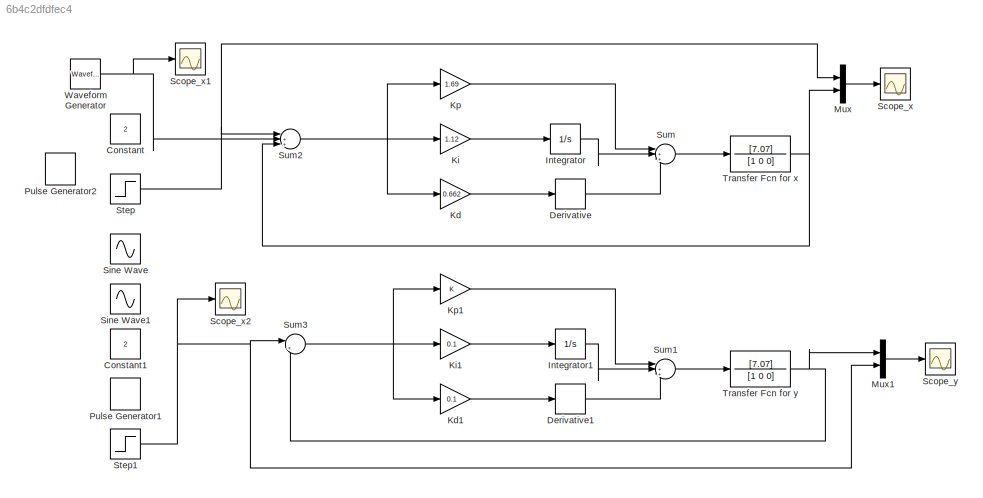
MODEL slx_6b4c2dfdfec4
KIND model
CONFIG AbsTol = auto
CONFIG EnableMultiTasking = off
CONFIG FixedStep = auto
CONFIG MaxStep = auto
CONFIG MinStep = auto
CONFIG RelTol = 1e-3
CONFIG SampleTimeConstraint = Unconstrained
CONFIG SolverName = VariableStepAuto
CONFIG StartTime = 0.0
CONFIG StopTime = 10.0
BLOCK [Constant] Constant
  Value = 2
BLOCK [Constant] Constant1
  Value = 2
BLOCK [Derivative] Derivative
BLOCK [Derivative] Derivative1
BLOCK [Integrator] Integrator
BLOCK [Integrator] Integrator1
BLOCK [Gain] Kd
  Gain = 0.662
BLOCK [Gain] Kd1
  Gain = 0.1
BLOCK [Gain] Ki
  Gain = 1.12
BLOCK [Gain] Ki1
  Gain = 0.1
BLOCK [Gain] Kp
  Gain = 1.69
BLOCK [Gain] Kp1
BLOCK [Mux] Mux
  DisplayOption = bar
  Inputs = 2
BLOCK [Mux] Mux1
  DisplayOption = bar
  Inputs = 2
BLOCK [DiscretePulseGenerator] Pulse Generator1
  Period = 10
  PulseType = Time based
  PulseWidth = 5
BLOCK [DiscretePulseGenerator] Pulse Generator2
  Period = 10
  PulseType = Time based
  PulseWidth = 5
BLOCK [Scope] Scope_x
  Floating = off
  NumInputPorts = 1
  ScopeSpecificationString = Simulink.scopes.TimeScopeBlockCfg('CurrentConfiguration', extmgr.ConfigurationSet(extmgr.Configuration('Core','General UI',true,'FigureColor',[1 1 1]),extmgr.Configuration('Core','Source UI',true),extmgr.Configuration('Sources','WiredSimulink',true),extmgr.Configuration('Visuals','Time Domain',true,'SerializedDisplays',{struct('MinYLimReal','-0.15256','MaxYLimReal','1.37301','YLabelReal','','MinYL...<+1611ch>
BLOCK [Scope] Scope_x1
  Floating = off
  NumInputPorts = 1
  ScopeSpecificationString = Simulink.scopes.TimeScopeBlockCfg('CurrentConfiguration', extmgr.ConfigurationSet(extmgr.Configuration('Core','General UI',true),extmgr.Configuration('Core','Source UI',true),extmgr.Configuration('Sources','WiredSimulink',true,'DataLoggingVariableName','ScopeData1'),extmgr.Configuration('Visuals','Time Domain',true,'SerializedDisplays',{struct('MinYLimReal','-0.21535','MaxYLimReal','0.18252','YLab...<+1495ch>
BLOCK [Scope] Scope_x2
  Floating = off
  NumInputPorts = 1
  ScopeSpecificationString = Simulink.scopes.TimeScopeBlockCfg('CurrentConfiguration', extmgr.ConfigurationSet(extmgr.Configuration('Core','General UI',true),extmgr.Configuration('Core','Source UI',true),extmgr.Configuration('Sources','WiredSimulink',true,'DataLoggingVariableName','ScopeData1'),extmgr.Configuration('Visuals','Time Domain',true,'SerializedDisplays',{struct('MinYLimReal','-0.125','MaxYLimReal','1.125','YLabelRe...<+1505ch>
BLOCK [Scope] Scope_y
  Floating = off
  NumInputPorts = 1
  ScopeSpecificationString = Simulink.scopes.TimeScopeBlockCfg('CurrentConfiguration', extmgr.ConfigurationSet(extmgr.Configuration('Core','General UI',true,'FigureColor',[1 1 1]),extmgr.Configuration('Core','Source UI',true),extmgr.Configuration('Sources','WiredSimulink',true,'DataLoggingVariableName','ScopeData1'),extmgr.Configuration('Visuals','Time Domain',true,'SerializedDisplays',{struct('MinYLimReal','-0.21345','MaxYLi...<+1651ch>
BLOCK [Sin] Sine Wave
  Frequency = 0.5
  SampleTime = 0
BLOCK [Sin] Sine Wave1
  Frequency = 0.5
  SampleTime = 0
BLOCK [Step] Step
  SampleTime = 0
BLOCK [Step] Step1
  SampleTime = 0
BLOCK [Sum] Sum
  Inputs = |+++
BLOCK [Sum] Sum1
  Inputs = |+++
BLOCK [Sum] Sum2
  Inputs = |++-
BLOCK [Sum] Sum3
  Inputs = |+-
BLOCK [TransferFcn] Transfer Fcn for x
  Denominator = [1 0 0]
  Numerator = [7.07]
BLOCK [TransferFcn] Transfer Fcn for y
  Denominator = [1 0 0]
  Numerator = [7.07]
BLOCK [Reference] Waveform Generator  REF=simulink/Sources/Waveform
Generator
  SourceBlock = simulink/Sources/Waveform\nGenerator
  SourceType = WaveformGenerator
LINE Derivative1:1 -> Sum1:3
LINE Derivative:1 -> Sum:3
LINE Integrator1:1 -> Sum1:2
LINE Integrator:1 -> Sum:2
LINE Kd1:1 -> Derivative1:1
LINE Kd:1 -> Derivative:1
LINE Ki1:1 -> Integrator1:1
LINE Ki:1 -> Integrator:1
LINE Kp1:1 -> Sum1:1
LINE Kp:1 -> Sum:1
LINE Mux1:1 -> Scope_y:1
LINE Mux:1 -> Scope_x:1
NET Step1:1 -> Mux1:2, Scope_x2:1, Sum3:1
NET Step:1 -> Mux:1, Sum2:1
LINE Sum1:1 -> Transfer Fcn for y:1
NET Sum2:1 -> Kd:1, Ki:1, Kp:1
NET Sum3:1 -> Kd1:1, Ki1:1, Kp1:1
LINE Sum:1 -> Transfer Fcn for x:1
NET Transfer Fcn for x:1 -> Mux:2, Sum2:3
NET Transfer Fcn for y:1 -> Mux1:1, Sum3:2
NET Waveform Generator:1 -> Scope_x1:1, Sum2:2
note: NET lines group one-source signal fan-out (src -> all destinations, sorted); 1:1 wires keep LINE
